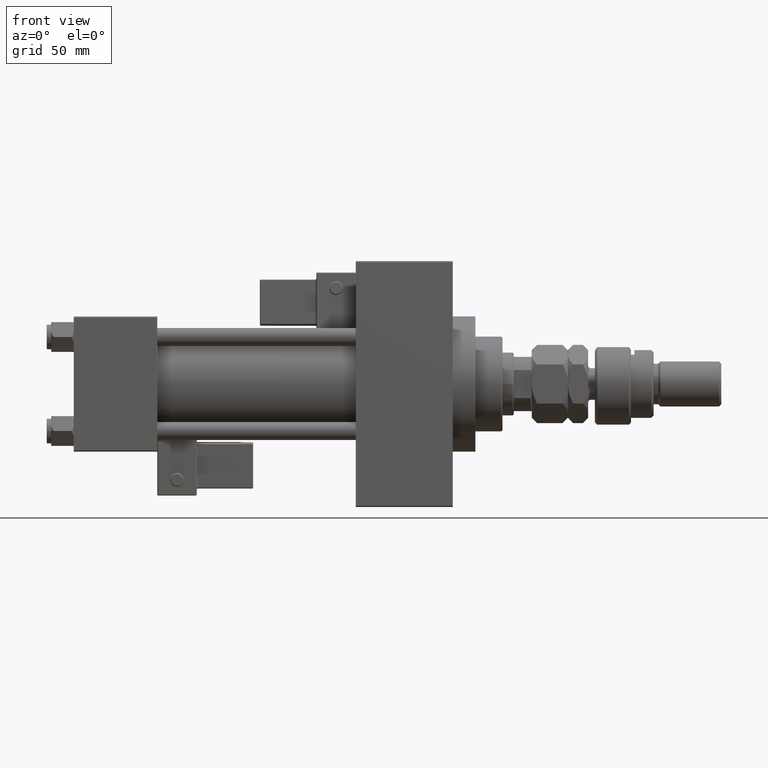
[diagram: clean part render]
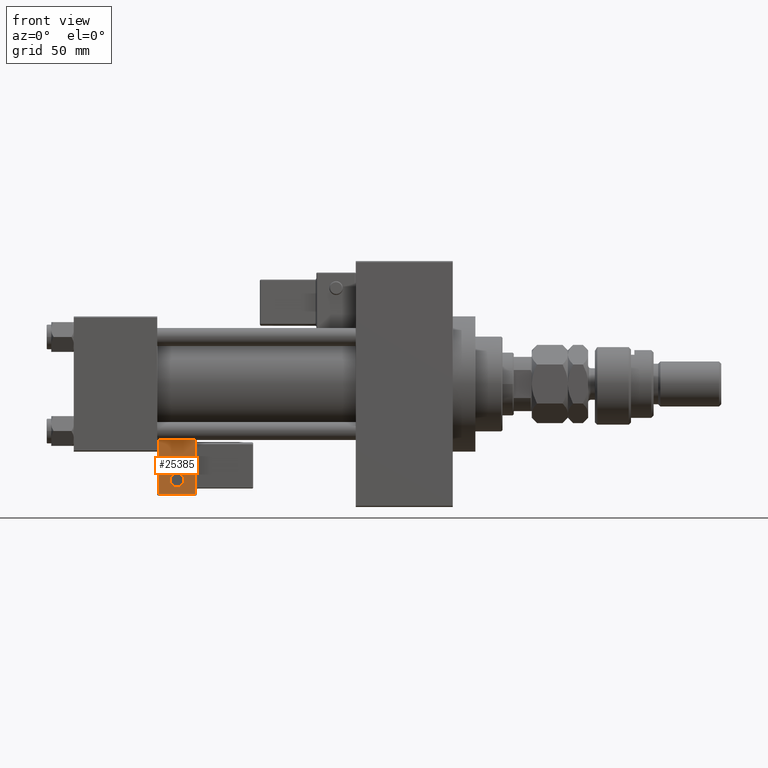
[diagram: same view with one face highlighted and labeled with its STEP entity id]
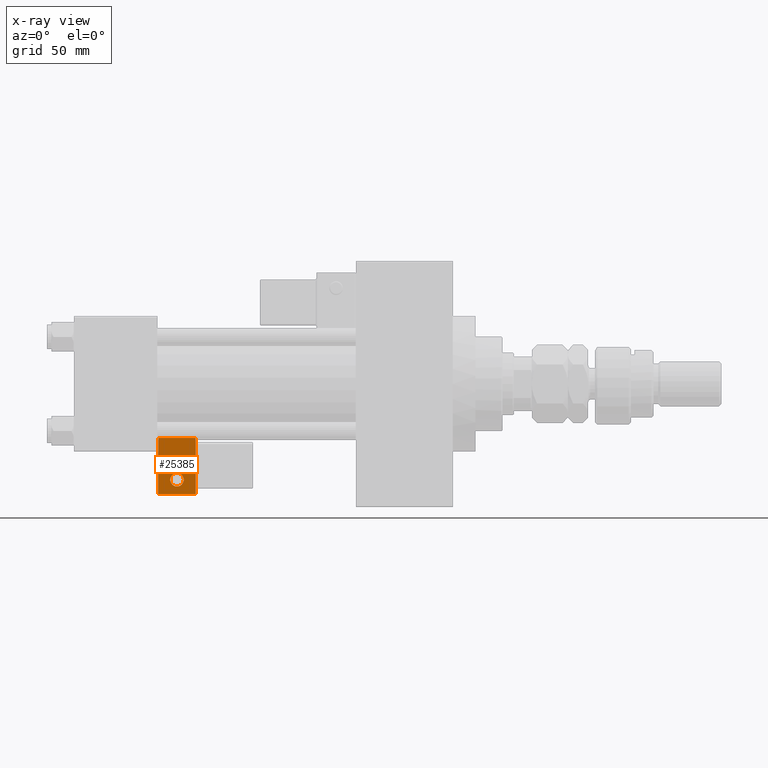
[diagram: x-ray of the same camera — body ghosted, the highlighted face saturated]
A machine part, front view. The second image highlights one B-rep face of the part: STEP entity #25385.
The next image is the same camera in x-ray: the body ghosted, the highlighted face saturated — about 0% of this face is hidden behind the body in this view.
In plain terms, the highlighted planar face has unit normal (0, 0.9994, 0.0353).
Its self-contained STEP definition (entity closure, byte-faithful):
#651 = FACE_BOUND ( 'NONE', #11131, .T. ) ;
#1246 = CARTESIAN_POINT ( 'NONE',  ( 4.857225732735059864E-15, -35.75000000000000000, 24.50000000000000000 ) ) ;
#1588 = EDGE_CURVE ( 'NONE', #8322, #5301, #21419, .T. ) ;
#1826 = AXIS2_PLACEMENT_3D ( 'NONE', #28821, #4898, #48783 ) ;
#2048 = CARTESIAN_POINT ( 'NONE',  ( -8.250000000000000000, -35.75000000000000000, 24.50000000000000355 ) ) ;
#3424 = ORIENTED_EDGE ( 'NONE', *, *, #36790, .T. ) ;
#3543 = DIRECTION ( 'NONE',  ( 0.000000000000000000, 0.000000000000000000, 1.000000000000000000 ) ) ;
#4193 = EDGE_LOOP ( 'NONE', ( #49209, #26033, #46476, #3424 ) ) ;
#4376 = FACE_OUTER_BOUND ( 'NONE', #4193, .T. ) ;
#4469 = DIRECTION ( 'NONE',  ( -1.334402673828313339E-16, 0.000000000000000000, 1.000000000000000000 ) ) ;
#4707 = LINE ( 'NONE', #1246, #10674 ) ;
#4898 = DIRECTION ( 'NONE',  ( 0.000000000000000000, 1.000000000000000000, 0.000000000000000000 ) ) ;
#5296 = AXIS2_PLACEMENT_3D ( 'NONE', #11786, #48201, #3543 ) ;
#5301 = VERTEX_POINT ( 'NONE', #37357 ) ;
#8322 = VERTEX_POINT ( 'NONE', #18395 ) ;
#9458 = LINE ( 'NONE', #25927, #18100 ) ;
#10440 = DIRECTION ( 'NONE',  ( 0.000000000000000000, 0.000000000000000000, 1.000000000000000000 ) ) ;
#10674 = VECTOR ( 'NONE', #49368, 1000.000000000000000 ) ;
#11131 = EDGE_LOOP ( 'NONE', ( #15004, #15247 ) ) ;
#11664 = CARTESIAN_POINT ( 'NONE',  ( 8.250000000000003553, -35.75000000000000000, 1.100882205908358986E-15 ) ) ;
#11786 = CARTESIAN_POINT ( 'NONE',  ( -4.336808689942017736E-16, -35.75000000000000000, 6.000000000000001776 ) ) ;
#12411 = VERTEX_POINT ( 'NONE', #38542 ) ;
#13337 = EDGE_CURVE ( 'NONE', #19416, #45431, #34106, .T. ) ;
#13477 = CARTESIAN_POINT ( 'NONE',  ( 8.250000000000003553, -35.75000000000000000, -0.5000000000000002220 ) ) ;
#15004 = ORIENTED_EDGE ( 'NONE', *, *, #28633, .F. ) ;
#15088 = EDGE_CURVE ( 'NONE', #12411, #19416, #4707, .T. ) ;
#15247 = ORIENTED_EDGE ( 'NONE', *, *, #1588, .F. ) ;
#15778 = VECTOR ( 'NONE', #29330, 1000.000000000000000 ) ;
#18100 = VECTOR ( 'NONE', #41597, 1000.000000000000000 ) ;
#18395 = CARTESIAN_POINT ( 'NONE',  ( -6.628682924999581145E-17, -35.75000000000000000, 3.000000000000001776 ) ) ;
#19416 = VERTEX_POINT ( 'NONE', #2048 ) ;
#21419 = CIRCLE ( 'NONE', #5296, 2.999999999999999112 ) ;
#24842 = AXIS2_PLACEMENT_3D ( 'NONE', #26641, #46855, #10440 ) ;
#25385 = ADVANCED_FACE ( 'NONE', ( #4376, #651 ), #38288, .F. ) ;
#25927 = CARTESIAN_POINT ( 'NONE',  ( 0.000000000000000000, -35.75000000000000000, -0.5000000000000002220 ) ) ;
#26033 = ORIENTED_EDGE ( 'NONE', *, *, #13337, .T. ) ;
#26641 = CARTESIAN_POINT ( 'NONE',  ( -4.336808689942017736E-16, -35.75000000000000000, 6.000000000000001776 ) ) ;
#28633 = EDGE_CURVE ( 'NONE', #5301, #8322, #47777, .T. ) ;
#28821 = CARTESIAN_POINT ( 'NONE',  ( 0.000000000000000000, -35.75000000000000000, 0.000000000000000000 ) ) ;
#29330 = DIRECTION ( 'NONE',  ( -1.334402673828313093E-16, 0.000000000000000000, -1.000000000000000000 ) ) ;
#31643 = EDGE_CURVE ( 'NONE', #45431, #49999, #9458, .T. ) ;
#34106 = LINE ( 'NONE', #41544, #15778 ) ;
#34409 = VECTOR ( 'NONE', #4469, 1000.000000000000000 ) ;
#36790 = EDGE_CURVE ( 'NONE', #49999, #12411, #44871, .T. ) ;
#37357 = CARTESIAN_POINT ( 'NONE',  ( -4.336808689942017736E-16, -35.75000000000000000, 9.000000000000001776 ) ) ;
#38288 = PLANE ( 'NONE',  #1826 ) ;
#38542 = CARTESIAN_POINT ( 'NONE',  ( 8.250000000000000000, -35.75000000000000000, 24.50000000000000000 ) ) ;
#41544 = CARTESIAN_POINT ( 'NONE',  ( -8.250000000000003553, -35.75000000000000000, 1.100882205908358788E-15 ) ) ;
#41597 = DIRECTION ( 'NONE',  ( 1.000000000000000000, 0.000000000000000000, 0.000000000000000000 ) ) ;
#43102 = CARTESIAN_POINT ( 'NONE',  ( -8.250000000000003553, -35.75000000000000000, -0.5000000000000002220 ) ) ;
#44871 = LINE ( 'NONE', #11664, #34409 ) ;
#45431 = VERTEX_POINT ( 'NONE', #43102 ) ;
#46476 = ORIENTED_EDGE ( 'NONE', *, *, #31643, .T. ) ;
#46855 = DIRECTION ( 'NONE',  ( -0.000000000000000000, -1.000000000000000000, -0.000000000000000000 ) ) ;
#47777 = CIRCLE ( 'NONE', #24842, 2.999999999999999112 ) ;
#48201 = DIRECTION ( 'NONE',  ( -0.000000000000000000, -1.000000000000000000, -0.000000000000000000 ) ) ;
#48783 = DIRECTION ( 'NONE',  ( 0.000000000000000000, -0.000000000000000000, 1.000000000000000000 ) ) ;
#49209 = ORIENTED_EDGE ( 'NONE', *, *, #15088, .T. ) ;
#49368 = DIRECTION ( 'NONE',  ( -1.000000000000000000, 0.000000000000000000, 1.982541115402065110E-16 ) ) ;
#49999 = VERTEX_POINT ( 'NONE', #13477 ) ;